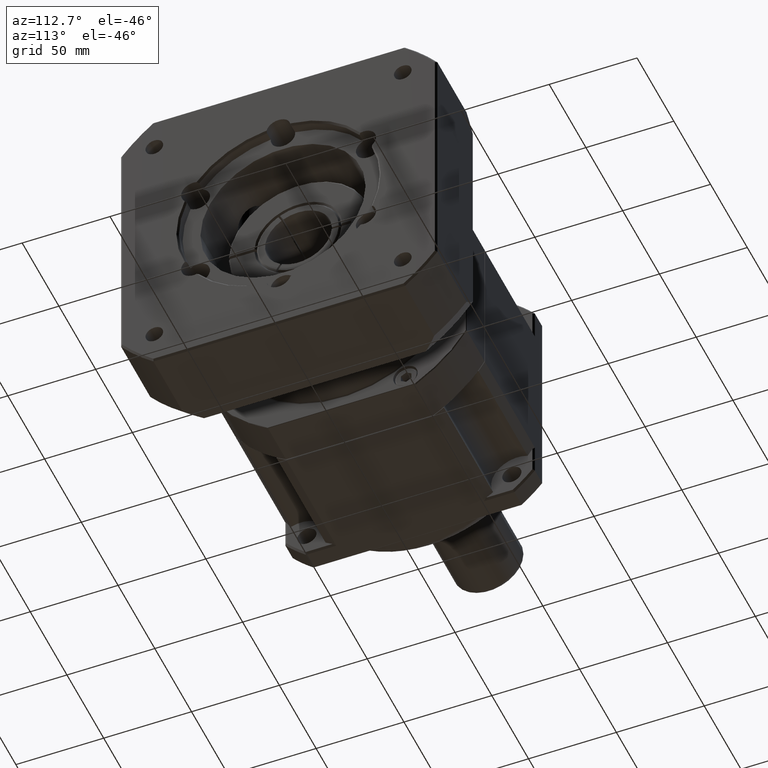
[diagram: clean part render]
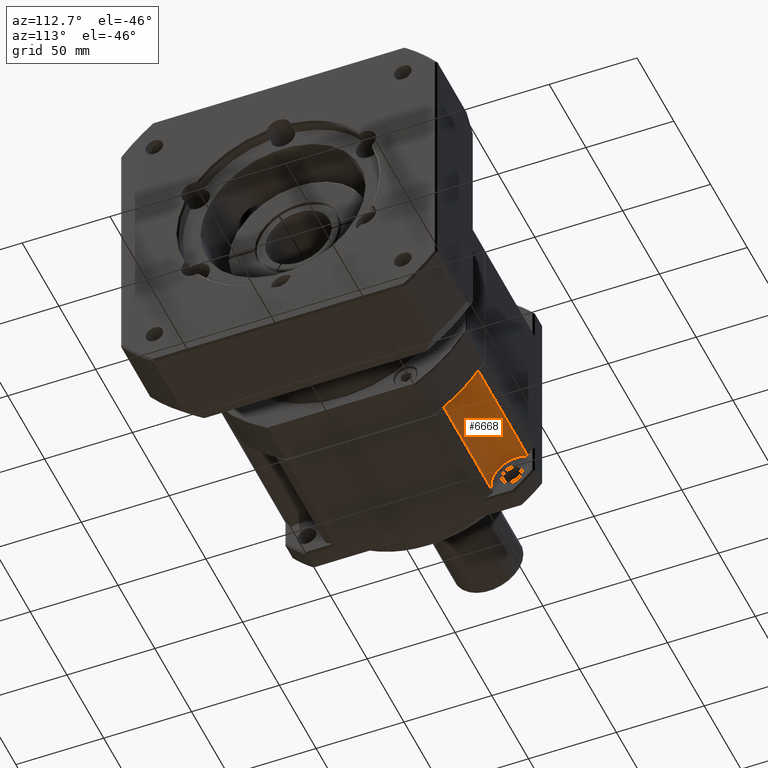
[diagram: same view with one face highlighted and labeled with its STEP entity id]
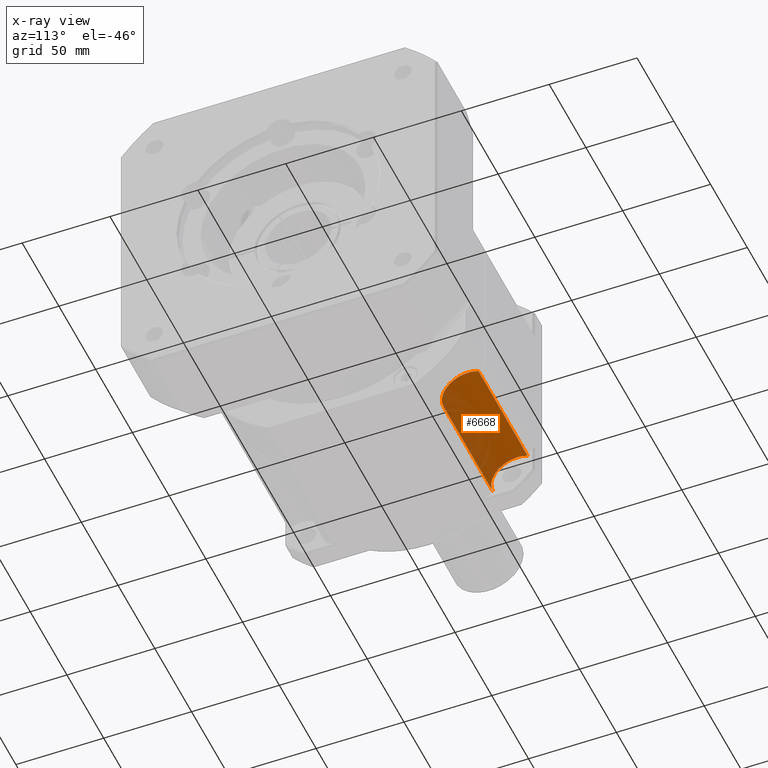
[diagram: x-ray of the same camera — body ghosted, the highlighted face saturated]
A machine part, auxiliary view. The second image highlights one B-rep face of the part: STEP entity #6668.
The next image is the same camera in x-ray: the body ghosted, the highlighted face saturated — about 0% of this face is hidden behind the body in this view.
In plain terms, the highlighted cylindrical surface (edge-blend (fillet) strip) has radius 15 mm, axis along (-1, 0, 0).
Its self-contained STEP definition (entity closure, byte-faithful):
#350=LINE('',#11386,#658);
#351=LINE('',#11390,#659);
#658=VECTOR('',#8939,67.);
#659=VECTOR('',#8942,67.);
#1332=CYLINDRICAL_SURFACE('',#7402,15.);
#1860=FACE_OUTER_BOUND('',#2445,.T.);
#2445=EDGE_LOOP('',(#5504,#5505,#5506,#5507,#5508,#5509));
#2870=CIRCLE('',#7248,15.);
#2886=CIRCLE('',#7286,15.);
#2938=CIRCLE('',#7403,15.);
#2939=CIRCLE('',#7404,15.);
#3322=VERTEX_POINT('',#10780);
#3323=VERTEX_POINT('',#10782);
#3355=VERTEX_POINT('',#11074);
#3440=VERTEX_POINT('',#11385);
#3441=VERTEX_POINT('',#11387);
#3442=VERTEX_POINT('',#11389);
#4039=EDGE_CURVE('',#3322,#3323,#2870,.T.);
#4070=EDGE_CURVE('',#3355,#3322,#2886,.T.);
#4190=EDGE_CURVE('',#3440,#3355,#350,.T.);
#4191=EDGE_CURVE('',#3440,#3441,#2938,.T.);
#4192=EDGE_CURVE('',#3442,#3441,#351,.T.);
#4193=EDGE_CURVE('',#3323,#3442,#2939,.T.);
#5504=ORIENTED_EDGE('',*,*,#4190,.F.);
#5505=ORIENTED_EDGE('',*,*,#4191,.T.);
#5506=ORIENTED_EDGE('',*,*,#4192,.F.);
#5507=ORIENTED_EDGE('',*,*,#4193,.F.);
#5508=ORIENTED_EDGE('',*,*,#4039,.F.);
#5509=ORIENTED_EDGE('',*,*,#4070,.F.);
#6668=ADVANCED_FACE('',(#1860),#1332,.F.);
#7248=AXIS2_PLACEMENT_3D('',#10902,#8578,#8579);
#7286=AXIS2_PLACEMENT_3D('',#11076,#8661,#8662);
#7402=AXIS2_PLACEMENT_3D('',#11384,#8937,#8938);
#7403=AXIS2_PLACEMENT_3D('',#11388,#8940,#8941);
#7404=AXIS2_PLACEMENT_3D('',#11391,#8943,#8944);
#8578=DIRECTION('center_axis',(-1.,9.99200722162628E-16,9.84803175675623E-16));
#8579=DIRECTION('ref_axis',(-9.84803175675621E-16,1.44572534236776E-15,
-1.));
#8661=DIRECTION('center_axis',(-1.,9.99200722162628E-16,9.84803175675623E-16));
#8662=DIRECTION('ref_axis',(-9.84803175675621E-16,1.44572534236776E-15,
-1.));
#8937=DIRECTION('center_axis',(-1.,9.99200722162628E-16,9.84803175675623E-16));
#8938=DIRECTION('ref_axis',(-9.84803175675621E-16,1.44572534236776E-15,
-1.));
#8939=DIRECTION('',(1.,-9.99200722162628E-16,-9.84803175675623E-16));
#8940=DIRECTION('center_axis',(-1.,9.99200722162628E-16,9.84803175675623E-16));
#8941=DIRECTION('ref_axis',(-9.84803175675621E-16,1.44572534236776E-15,
-1.));
#8942=DIRECTION('',(-1.,9.99200722162628E-16,9.84803175675623E-16));
#8943=DIRECTION('center_axis',(-1.,9.99200722162628E-16,9.84803175675623E-16));
#8944=DIRECTION('ref_axis',(-9.84803175675621E-16,1.44572534236776E-15,
-1.));
#10780=CARTESIAN_POINT('',(-171.559385272837,-102.814325488522,-143.846826169555));
#10782=CARTESIAN_POINT('',(-171.559385272837,-83.465704419556,-124.498205100589));
#10902=CARTESIAN_POINT('Origin',(-171.559385272836,-88.7917146329494,-138.520815956162));
#11074=CARTESIAN_POINT('',(-171.559385272837,-102.623473334047,-144.324474391547));
#11076=CARTESIAN_POINT('Origin',(-171.559385272836,-88.7917146329494,-138.520815956162));
#11384=CARTESIAN_POINT('Origin',(-171.559385272836,-88.7917146329494,-138.520815956162));
#11385=CARTESIAN_POINT('',(-238.559385272837,-102.623473334047,-144.324474391547));
#11386=CARTESIAN_POINT('',(-171.559385272837,-102.623473334047,-144.324474391547));
#11387=CARTESIAN_POINT('',(-238.559385272836,-82.9880561975646,-124.689057255064));
#11388=CARTESIAN_POINT('Origin',(-238.559385272836,-88.7917146329493,-138.520815956162));
#11389=CARTESIAN_POINT('',(-171.559385272836,-82.9880561975647,-124.689057255064));
#11390=CARTESIAN_POINT('',(-171.559385272836,-82.9880561975647,-124.689057255064));
#11391=CARTESIAN_POINT('Origin',(-171.559385272836,-88.7917146329494,-138.520815956162));